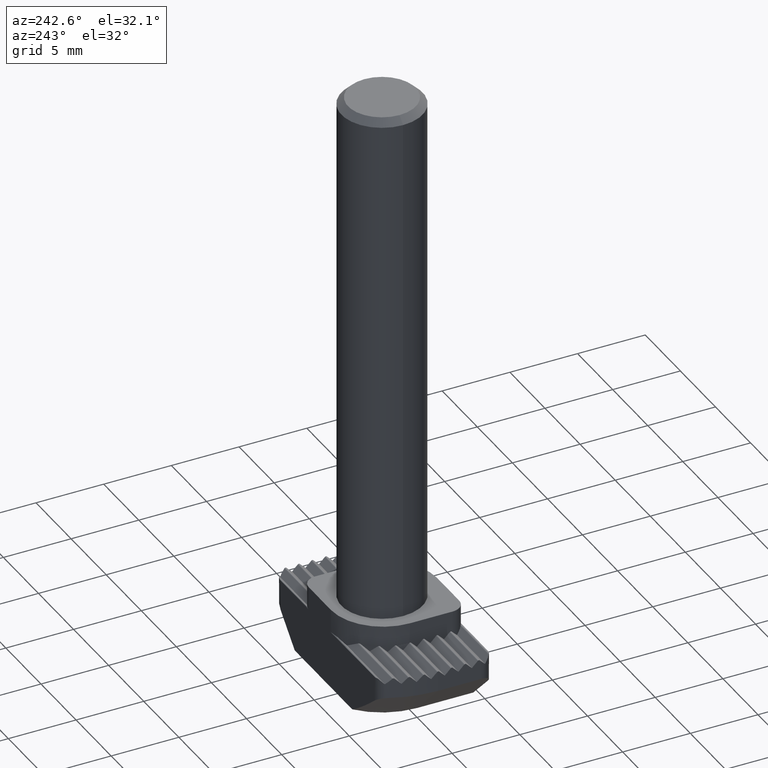
[diagram: clean part render]
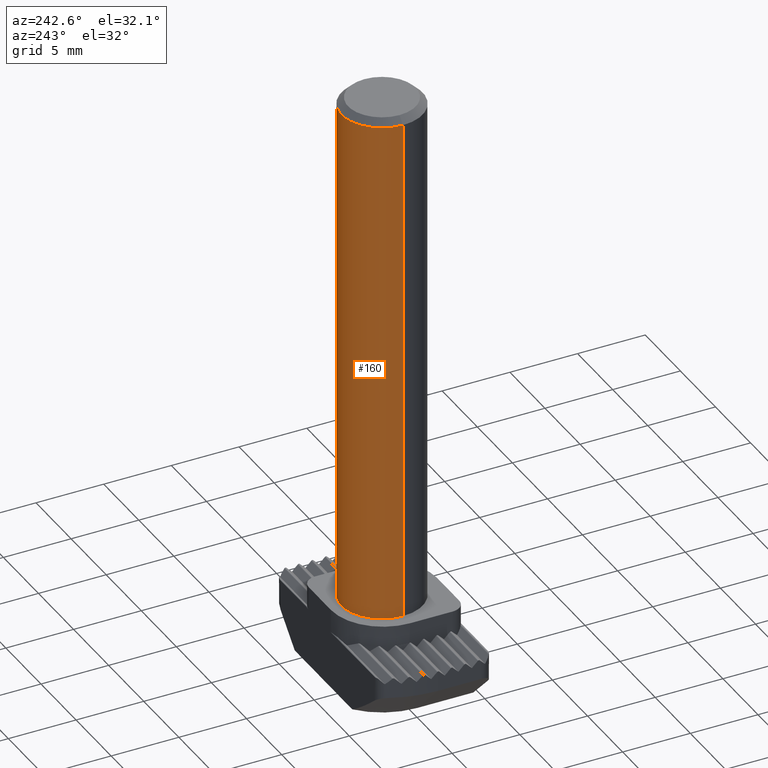
[diagram: same view with one face highlighted and labeled with its STEP entity id]
A machine part, auxiliary view. The second image highlights one B-rep face of the part: STEP entity #160.
In plain terms, the highlighted cylindrical surface (partial cylindrical patch) has radius 3 mm, axis along (0, 0, 1).
Its self-contained STEP definition (entity closure, byte-faithful):
#160=ADVANCED_FACE('NONE',(#394),#395,.T.);
#394=FACE_OUTER_BOUND('',#700,.T.);
#395=CYLINDRICAL_SURFACE('',#701,3.0);
#700=EDGE_LOOP('',(#1090,#1091,#1092,#1093));
#701=AXIS2_PLACEMENT_3D('',#1094,#1095,#1096);
#1090=ORIENTED_EDGE('',*,*,#1995,.T.);
#1091=ORIENTED_EDGE('',*,*,#1996,.T.);
#1092=ORIENTED_EDGE('',*,*,#1997,.T.);
#1093=ORIENTED_EDGE('',*,*,#1998,.F.);
#1094=CARTESIAN_POINT('',(0.0,0.0,-0.768602439297303));
#1095=DIRECTION('',(0.0,0.0,1.0));
#1096=DIRECTION('',(-1.0,0.0,0.0));
#1995=EDGE_CURVE('NONE',#2448,#2449,#2450,.T.);
#1996=EDGE_CURVE('NONE',#2449,#2451,#2452,.T.);
#1997=EDGE_CURVE('NONE',#2451,#2453,#2454,.T.);
#1998=EDGE_CURVE('NONE',#2448,#2453,#2455,.T.);
#2448=VERTEX_POINT('NONE',#3320);
#2449=VERTEX_POINT('NONE',#3321);
#2450=CIRCLE('',#3322,3.00000000000001);
#2451=VERTEX_POINT('NONE',#3323);
#2452=LINE('',#3324,#3325);
#2453=VERTEX_POINT('NONE',#3326);
#2454=CIRCLE('',#3327,3.0);
#2455=LINE('',#3328,#3329);
#3320=CARTESIAN_POINT('',(-3.00000000000001,0.0,44.0));
#3321=CARTESIAN_POINT('',(3.00000000000001,3.67394039744207E-016,44.0));
#3322=AXIS2_PLACEMENT_3D('',#4714,#4715,#4716);
#3323=CARTESIAN_POINT('',(3.0,3.67394039744206E-016,6.0));
#3324=CARTESIAN_POINT('',(3.0,3.67394039744206E-016,-0.768602439297303));
#3325=VECTOR('',#4717,1000.0);
#3326=CARTESIAN_POINT('',(-3.0,0.0,6.0));
#3327=AXIS2_PLACEMENT_3D('',#4718,#4719,#4720);
#3328=CARTESIAN_POINT('',(-3.0,0.0,-0.768602439297303));
#3329=VECTOR('',#4721,1000.0);
#4714=CARTESIAN_POINT('',(0.0,0.0,44.0));
#4715=DIRECTION('',(0.0,0.0,-1.0));
#4716=DIRECTION('',(-1.0,0.0,0.0));
#4717=DIRECTION('',(-0.0,-0.0,-1.0));
#4718=CARTESIAN_POINT('',(0.0,0.0,6.0));
#4719=DIRECTION('',(0.0,0.0,1.0));
#4720=DIRECTION('',(-1.0,0.0,0.0));
#4721=DIRECTION('',(-0.0,-0.0,-1.0));